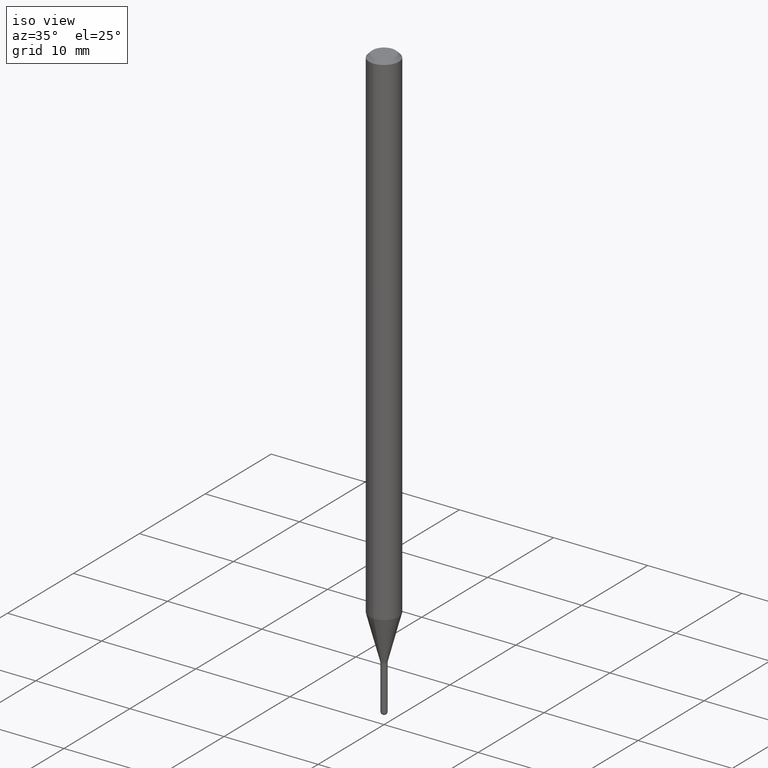
[diagram: clean part render]
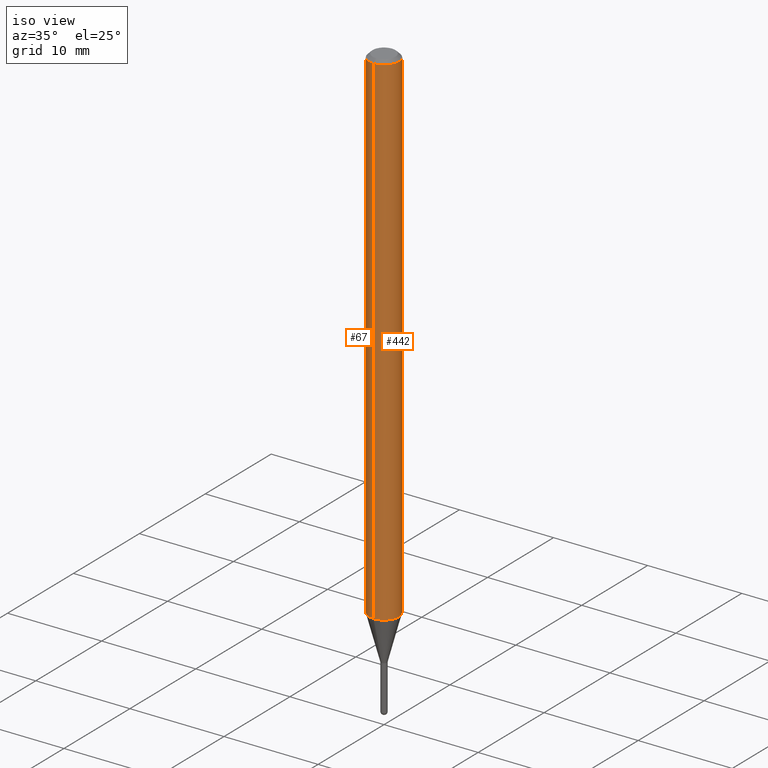
[diagram: same view with one multi-face feature highlighted, each face labeled with its STEP entity id]
A machine part, iso view. The highlighted faces form ONE feature: a constant-radius fillet chain: 2 tangent blend faces with common blend radius 1.5875 mm. The faces share edges in the B-rep.
Their STEP definitions:
[1] entity #67 (Cylinder):
#6 = VECTOR ( 'NONE', #95, 39.37007874015748143 ) ;
#9 = CIRCLE ( 'NONE', #415, 0.06250000000000000000 ) ;
#36 = EDGE_CURVE ( 'NONE', #373, #41, #136, .T. ) ;
#41 = VERTEX_POINT ( 'NONE', #366 ) ;
#48 = CARTESIAN_POINT ( 'NONE',  ( 0.000000000000000000, 0.000000000000000000, 0.000000000000000000 ) ) ;
#53 = DIRECTION ( 'NONE',  ( -2.445546882904530641E-29, 3.491369528537122392E-15, 1.000000000000000000 ) ) ;
#67 = ADVANCED_FACE ( 'NONE', ( #483 ), #402, .T. ) ;
#70 = CIRCLE ( 'NONE', #330, 0.06250000000000000000 ) ;
#85 = EDGE_LOOP ( 'NONE', ( #438, #405, #467, #356 ) ) ;
#89 = CARTESIAN_POINT ( 'NONE',  ( 5.168412569715866303E-29, -7.378651492210488273E-15, -2.113397459621562557 ) ) ;
#95 = DIRECTION ( 'NONE',  ( -2.445546882904530641E-29, 3.491369528537121997E-15, 1.000000000000000000 ) ) ;
#101 = AXIS2_PLACEMENT_3D ( 'NONE', #48, #155, #153 ) ;
#105 = CARTESIAN_POINT ( 'NONE',  ( 4.440892098501145824E-16, 0.06249999999999995143, -0.01500000000000022669 ) ) ;
#129 = DIRECTION ( 'NONE',  ( -6.982962677686265922E-15, -1.000000000000000000, 4.370956789862821150E-15 ) ) ;
#132 = DIRECTION ( 'NONE',  ( -2.445546882904530641E-29, 3.491369528537121997E-15, 1.000000000000000000 ) ) ;
#136 = LINE ( 'NONE', #408, #6 ) ;
#153 = DIRECTION ( 'NONE',  ( -6.982962677686265922E-15, -1.000000000000000000, 3.491369528537121997E-15 ) ) ;
#155 = DIRECTION ( 'NONE',  ( -2.445546882904530641E-29, 3.491369528537122392E-15, 1.000000000000000000 ) ) ;
#166 = CARTESIAN_POINT ( 'NONE',  ( 4.440892098501140893E-16, 0.06249999999999260314, -2.113397459621563002 ) ) ;
#222 = EDGE_CURVE ( 'NONE', #239, #373, #9, .T. ) ;
#239 = VERTEX_POINT ( 'NONE', #166 ) ;
#265 = EDGE_CURVE ( 'NONE', #239, #464, #439, .T. ) ;
#282 = VECTOR ( 'NONE', #132, 39.37007874015748143 ) ;
#320 = DIRECTION ( 'NONE',  ( -2.445546882904530641E-29, 3.491369528537122392E-15, 1.000000000000000000 ) ) ;
#330 = AXIS2_PLACEMENT_3D ( 'NONE', #455, #53, #413 ) ;
#356 = ORIENTED_EDGE ( 'NONE', *, *, #431, .F. ) ;
#366 = CARTESIAN_POINT ( 'NONE',  ( -4.364351673553912750E-16, -0.06250000000000005551, -0.01499999999999979128 ) ) ;
#373 = VERTEX_POINT ( 'NONE', #375 ) ;
#375 = CARTESIAN_POINT ( 'NONE',  ( -4.364351673553399497E-16, -0.06250000000000736911, -2.113397459621562557 ) ) ;
#402 = CYLINDRICAL_SURFACE ( 'NONE', #101, 0.06250000000000000000 ) ;
#405 = ORIENTED_EDGE ( 'NONE', *, *, #222, .T. ) ;
#408 = CARTESIAN_POINT ( 'NONE',  ( -4.364351673553916201E-16, -0.06250000000000000000, 2.182105955335701248E-16 ) ) ;
#413 = DIRECTION ( 'NONE',  ( -6.982962677686265922E-15, -1.000000000000000000, 3.483106191921935554E-15 ) ) ;
#415 = AXIS2_PLACEMENT_3D ( 'NONE', #89, #320, #129 ) ;
#431 = EDGE_CURVE ( 'NONE', #464, #41, #70, .T. ) ;
#433 = CARTESIAN_POINT ( 'NONE',  ( 4.440892098500625669E-16, 0.06250000000000000000, -2.182105955335701248E-16 ) ) ;
#438 = ORIENTED_EDGE ( 'NONE', *, *, #265, .F. ) ;
#439 = LINE ( 'NONE', #433, #282 ) ;
#455 = CARTESIAN_POINT ( 'NONE',  ( 3.668320324356798308E-31, -5.237054292805686472E-17, -0.01500000000000000812 ) ) ;
#464 = VERTEX_POINT ( 'NONE', #105 ) ;
#467 = ORIENTED_EDGE ( 'NONE', *, *, #36, .T. ) ;
#483 = FACE_OUTER_BOUND ( 'NONE', #85, .T. ) ;
[2] entity #442 (Cylinder):
#5 = ORIENTED_EDGE ( 'NONE', *, *, #36, .F. ) ;
#6 = VECTOR ( 'NONE', #95, 39.37007874015748143 ) ;
#11 = ORIENTED_EDGE ( 'NONE', *, *, #325, .T. ) ;
#36 = EDGE_CURVE ( 'NONE', #373, #41, #136, .T. ) ;
#41 = VERTEX_POINT ( 'NONE', #366 ) ;
#46 = AXIS2_PLACEMENT_3D ( 'NONE', #488, #211, #62 ) ;
#56 = DIRECTION ( 'NONE',  ( -2.445546882904530641E-29, 3.491369528537122392E-15, 1.000000000000000000 ) ) ;
#62 = DIRECTION ( 'NONE',  ( -6.982962677686265922E-15, -1.000000000000000000, 3.491369528537121997E-15 ) ) ;
#95 = DIRECTION ( 'NONE',  ( -2.445546882904530641E-29, 3.491369528537121997E-15, 1.000000000000000000 ) ) ;
#105 = CARTESIAN_POINT ( 'NONE',  ( 4.440892098501145824E-16, 0.06249999999999995143, -0.01500000000000022669 ) ) ;
#132 = DIRECTION ( 'NONE',  ( -2.445546882904530641E-29, 3.491369528537121997E-15, 1.000000000000000000 ) ) ;
#136 = LINE ( 'NONE', #408, #6 ) ;
#166 = CARTESIAN_POINT ( 'NONE',  ( 4.440892098501140893E-16, 0.06249999999999260314, -2.113397459621563002 ) ) ;
#208 = CYLINDRICAL_SURFACE ( 'NONE', #46, 0.06250000000000000000 ) ;
#211 = DIRECTION ( 'NONE',  ( -2.445546882904530641E-29, 3.491369528537122392E-15, 1.000000000000000000 ) ) ;
#239 = VERTEX_POINT ( 'NONE', #166 ) ;
#265 = EDGE_CURVE ( 'NONE', #239, #464, #439, .T. ) ;
#269 = AXIS2_PLACEMENT_3D ( 'NONE', #435, #361, #470 ) ;
#282 = VECTOR ( 'NONE', #132, 39.37007874015748143 ) ;
#300 = ORIENTED_EDGE ( 'NONE', *, *, #503, .F. ) ;
#308 = CIRCLE ( 'NONE', #333, 0.06250000000000000000 ) ;
#325 = EDGE_CURVE ( 'NONE', #373, #239, #490, .T. ) ;
#333 = AXIS2_PLACEMENT_3D ( 'NONE', #409, #56, #372 ) ;
#361 = DIRECTION ( 'NONE',  ( -2.445546882904530641E-29, 3.491369528537122392E-15, 1.000000000000000000 ) ) ;
#366 = CARTESIAN_POINT ( 'NONE',  ( -4.364351673553912750E-16, -0.06250000000000005551, -0.01499999999999979128 ) ) ;
#372 = DIRECTION ( 'NONE',  ( -6.982962677686265922E-15, -1.000000000000000000, 3.483106191921935554E-15 ) ) ;
#373 = VERTEX_POINT ( 'NONE', #375 ) ;
#375 = CARTESIAN_POINT ( 'NONE',  ( -4.364351673553399497E-16, -0.06250000000000736911, -2.113397459621562557 ) ) ;
#408 = CARTESIAN_POINT ( 'NONE',  ( -4.364351673553916201E-16, -0.06250000000000000000, 2.182105955335701248E-16 ) ) ;
#409 = CARTESIAN_POINT ( 'NONE',  ( 3.668320324356798308E-31, -5.237054292805686472E-17, -0.01500000000000000812 ) ) ;
#416 = FACE_OUTER_BOUND ( 'NONE', #471, .T. ) ;
#433 = CARTESIAN_POINT ( 'NONE',  ( 4.440892098500625669E-16, 0.06250000000000000000, -2.182105955335701248E-16 ) ) ;
#435 = CARTESIAN_POINT ( 'NONE',  ( 5.168412569715866303E-29, -7.378651492210488273E-15, -2.113397459621562557 ) ) ;
#439 = LINE ( 'NONE', #433, #282 ) ;
#442 = ADVANCED_FACE ( 'NONE', ( #416 ), #208, .T. ) ;
#464 = VERTEX_POINT ( 'NONE', #105 ) ;
#470 = DIRECTION ( 'NONE',  ( -6.982962677686265922E-15, -1.000000000000000000, 4.370956789862821150E-15 ) ) ;
#471 = EDGE_LOOP ( 'NONE', ( #11, #510, #300, #5 ) ) ;
#488 = CARTESIAN_POINT ( 'NONE',  ( 0.000000000000000000, 0.000000000000000000, 0.000000000000000000 ) ) ;
#490 = CIRCLE ( 'NONE', #269, 0.06250000000000000000 ) ;
#503 = EDGE_CURVE ( 'NONE', #41, #464, #308, .T. ) ;
#510 = ORIENTED_EDGE ( 'NONE', *, *, #265, .T. ) ;